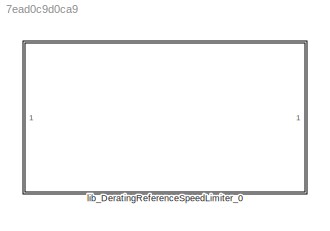
MODEL slx_7ead0c9d0ca9
KIND library
CONFIG AbsTol = auto
CONFIG EnableMultiTasking = off
CONFIG FixedStep = auto
CONFIG MaxStep = auto
CONFIG MinStep = auto
CONFIG RelTol = 1e-3
CONFIG SampleTimeConstraint = Unconstrained
CONFIG SolverName = VariableStepAuto
CONFIG StartTime = 0.0
CONFIG StopTime = 10.0
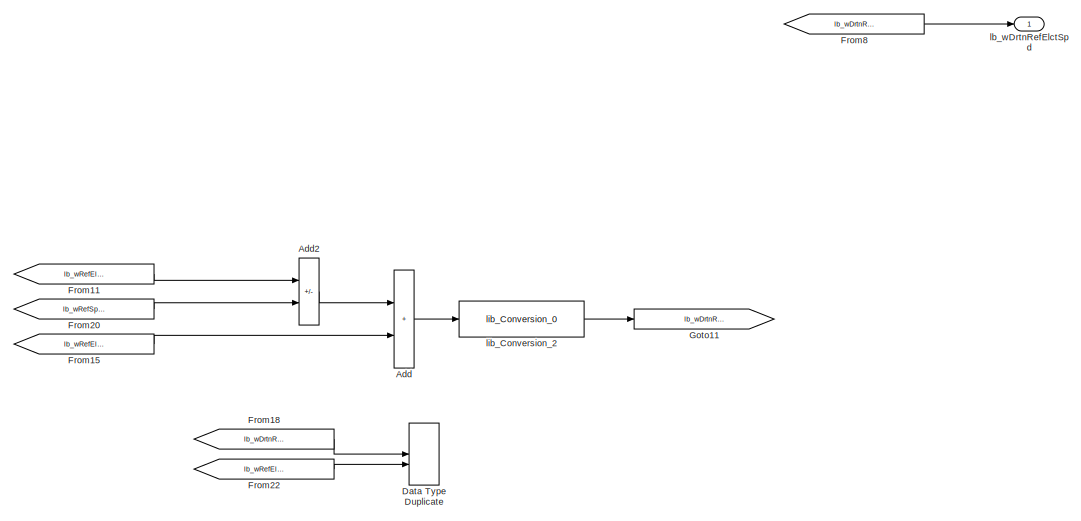
[diagram: lib_DeratingReferenceSpeedLimiter_0 - part 1/4, top right region]
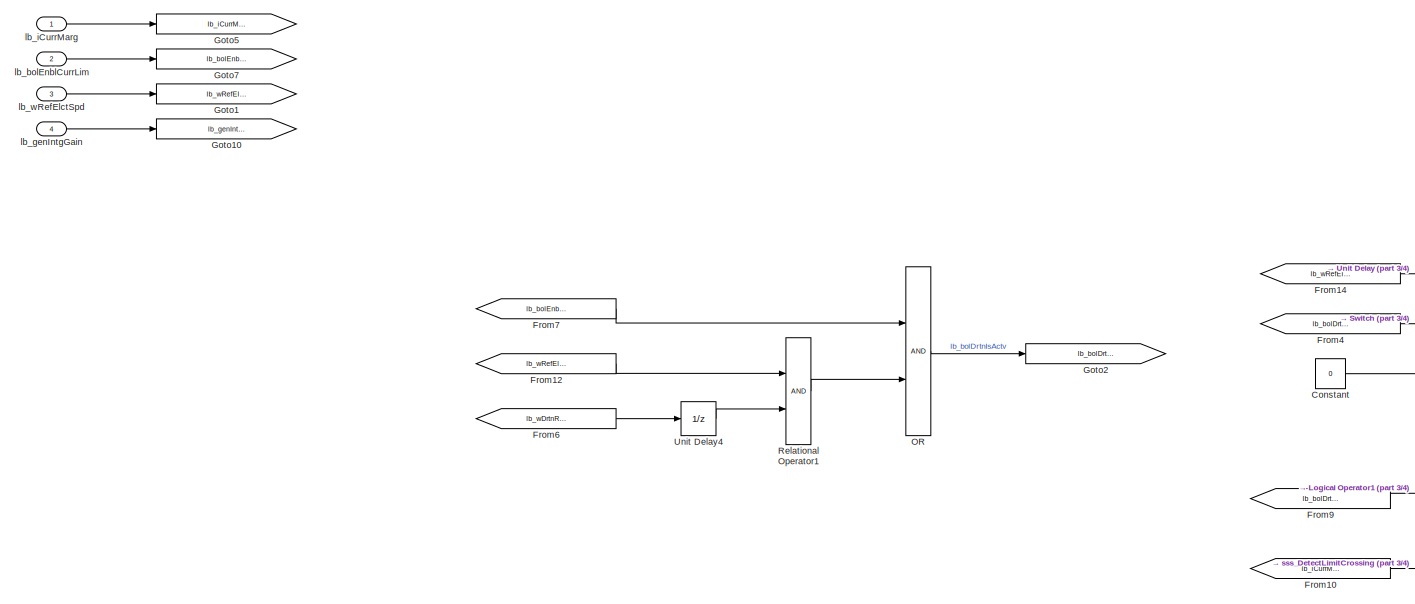
[diagram: lib_DeratingReferenceSpeedLimiter_0 - part 2/4, middle left region]
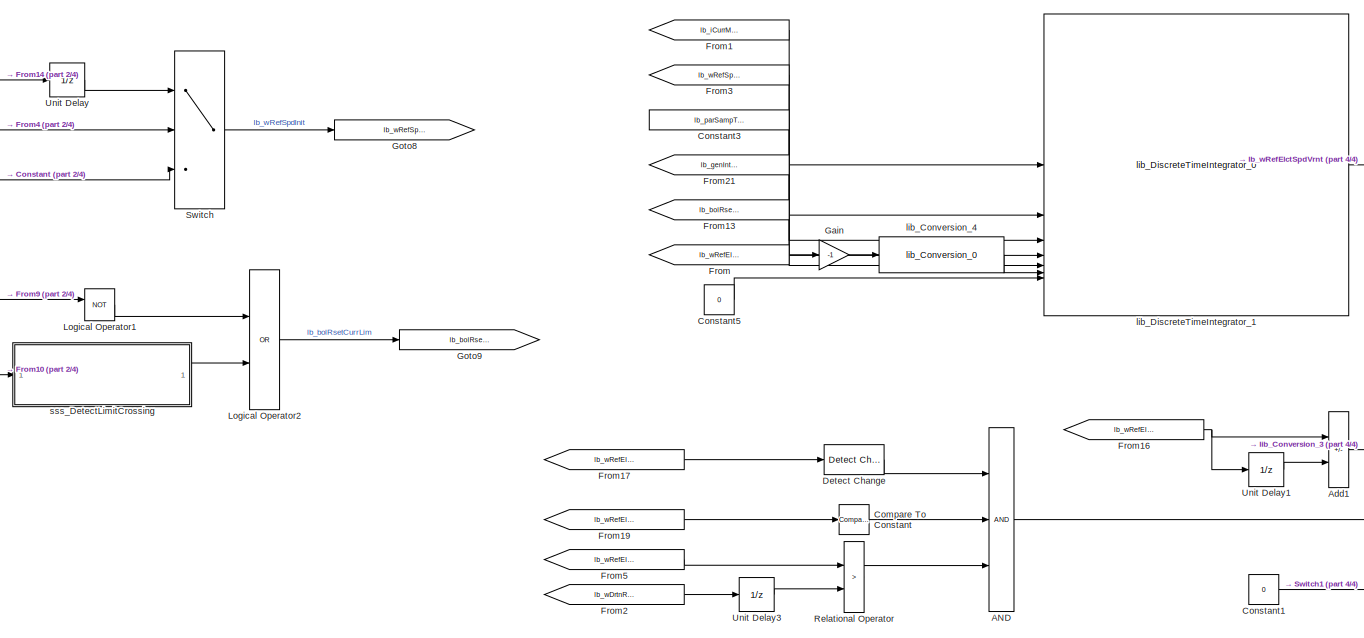
[diagram: lib_DeratingReferenceSpeedLimiter_0 - part 3/4, central region]
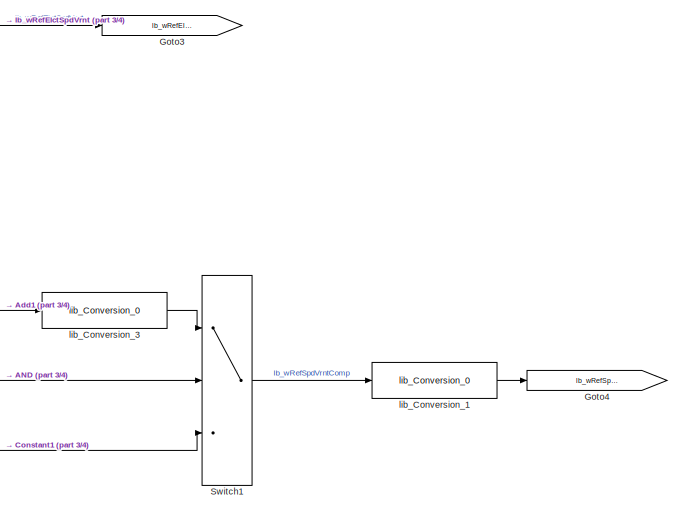
[diagram: lib_DeratingReferenceSpeedLimiter_0 - part 4/4, bottom right region]
BLOCK [SubSystem] lib_DeratingReferenceSpeedLimiter_0
BLOCK [Logic] lib_DeratingReferenceSpeedLimiter_0/AND
  AllPortsSameDT = off
  Inputs = 3
  OutDataTypeStr = boolean
BLOCK [Sum] lib_DeratingReferenceSpeedLimiter_0/Add
  IconShape = rectangular
  OutDataTypeStr = Inherit: Inherit via back propagation
BLOCK [Sum] lib_DeratingReferenceSpeedLimiter_0/Add1
  IconShape = rectangular
  Inputs = +-
  OutDataTypeStr = Inherit: Inherit via back propagation
BLOCK [Sum] lib_DeratingReferenceSpeedLimiter_0/Add2
  IconShape = rectangular
  Inputs = +-
  OutDataTypeStr = Inherit: Same as first input
BLOCK [Reference] lib_DeratingReferenceSpeedLimiter_0/Compare To Constant  REF=simulink/Logic and Bit
Operations/Compare
To Constant
  SourceBlock = simulink/Logic and Bit\nOperations/Compare\nTo Constant
  SourceType = Compare To Constant
BLOCK [Constant] lib_DeratingReferenceSpeedLimiter_0/Constant
  OutDataTypeStr = lb_parRefSpdDataType
  Value = 0
BLOCK [Constant] lib_DeratingReferenceSpeedLimiter_0/Constant1
  OutDataTypeStr = lb_parRefSpdDataType
  Value = 0
BLOCK [Constant] lib_DeratingReferenceSpeedLimiter_0/Constant3
  Value = lb_parSampTime
BLOCK [Constant] lib_DeratingReferenceSpeedLimiter_0/Constant5
  OutDataTypeStr = lb_parRefSpdDataType
  Value = 0
BLOCK [DataTypeDuplicate] lib_DeratingReferenceSpeedLimiter_0/Data Type Duplicate
BLOCK [Reference] lib_DeratingReferenceSpeedLimiter_0/Detect Change  REF=simulink/Logic and Bit
Operations/Detect
Change
  SourceBlock = simulink/Logic and Bit\nOperations/Detect\nChange
  SourceType = Detect Change
BLOCK [From] lib_DeratingReferenceSpeedLimiter_0/From
  GotoTag = lb_wRefElctSpd
BLOCK [From] lib_DeratingReferenceSpeedLimiter_0/From1
  GotoTag = lb_iCurrMarg
BLOCK [From] lib_DeratingReferenceSpeedLimiter_0/From10
  GotoTag = lb_iCurrMarg
BLOCK [From] lib_DeratingReferenceSpeedLimiter_0/From11
  GotoTag = lb_wRefElctSpdVrnt
BLOCK [From] lib_DeratingReferenceSpeedLimiter_0/From12
  GotoTag = lb_wRefElctSpd
BLOCK [From] lib_DeratingReferenceSpeedLimiter_0/From13
  GotoTag = lb_bolRsetCurrLim
BLOCK [From] lib_DeratingReferenceSpeedLimiter_0/From14
  GotoTag = lb_wRefElctSpdVrnt
BLOCK [From] lib_DeratingReferenceSpeedLimiter_0/From15
  GotoTag = lb_wRefElctSpd
BLOCK [From] lib_DeratingReferenceSpeedLimiter_0/From16
  GotoTag = lb_wRefElctSpd
BLOCK [From] lib_DeratingReferenceSpeedLimiter_0/From17
  GotoTag = lb_wRefElctSpd
BLOCK [From] lib_DeratingReferenceSpeedLimiter_0/From18
  GotoTag = lb_wDrtnRefElctSpd
BLOCK [From] lib_DeratingReferenceSpeedLimiter_0/From19
  GotoTag = lb_wRefElctSpdVrnt
BLOCK [From] lib_DeratingReferenceSpeedLimiter_0/From2
  GotoTag = lb_wDrtnRefElctSpd
BLOCK [From] lib_DeratingReferenceSpeedLimiter_0/From20
  GotoTag = lb_wRefSpdVrntComp
BLOCK [From] lib_DeratingReferenceSpeedLimiter_0/From21
  GotoTag = lb_genIntgGain
BLOCK [From] lib_DeratingReferenceSpeedLimiter_0/From22
  GotoTag = lb_wRefElctSpd
BLOCK [From] lib_DeratingReferenceSpeedLimiter_0/From3
  GotoTag = lb_wRefSpdInit
BLOCK [From] lib_DeratingReferenceSpeedLimiter_0/From4
  GotoTag = lb_bolDrtnIsActv
BLOCK [From] lib_DeratingReferenceSpeedLimiter_0/From5
  GotoTag = lb_wRefElctSpd
BLOCK [From] lib_DeratingReferenceSpeedLimiter_0/From6
  GotoTag = lb_wDrtnRefElctSpd
BLOCK [From] lib_DeratingReferenceSpeedLimiter_0/From7
  GotoTag = lb_bolEnblCurrLim
BLOCK [From] lib_DeratingReferenceSpeedLimiter_0/From8
  GotoTag = lb_wDrtnRefElctSpd
BLOCK [From] lib_DeratingReferenceSpeedLimiter_0/From9
  GotoTag = lb_bolDrtnIsActv
BLOCK [Gain] lib_DeratingReferenceSpeedLimiter_0/Gain
  Gain = -1
  OutDataTypeStr = Inherit: Inherit via back propagation
BLOCK [Goto] lib_DeratingReferenceSpeedLimiter_0/Goto1
  GotoTag = lb_wRefElctSpd
BLOCK [Goto] lib_DeratingReferenceSpeedLimiter_0/Goto10
  GotoTag = lb_genIntgGain
BLOCK [Goto] lib_DeratingReferenceSpeedLimiter_0/Goto11
  GotoTag = lb_wDrtnRefElctSpd
BLOCK [Goto] lib_DeratingReferenceSpeedLimiter_0/Goto2
  GotoTag = lb_bolDrtnIsActv
BLOCK [Goto] lib_DeratingReferenceSpeedLimiter_0/Goto3
  GotoTag = lb_wRefElctSpdVrnt
BLOCK [Goto] lib_DeratingReferenceSpeedLimiter_0/Goto4
  GotoTag = lb_wRefSpdVrntComp
BLOCK [Goto] lib_DeratingReferenceSpeedLimiter_0/Goto5
  GotoTag = lb_iCurrMarg
BLOCK [Goto] lib_DeratingReferenceSpeedLimiter_0/Goto7
  GotoTag = lb_bolEnblCurrLim
BLOCK [Goto] lib_DeratingReferenceSpeedLimiter_0/Goto8
  GotoTag = lb_wRefSpdInit
BLOCK [Goto] lib_DeratingReferenceSpeedLimiter_0/Goto9
  GotoTag = lb_bolRsetCurrLim
BLOCK [Logic] lib_DeratingReferenceSpeedLimiter_0/Logical Operator1
  AllPortsSameDT = off
  Operator = NOT
  OutDataTypeStr = boolean
BLOCK [Logic] lib_DeratingReferenceSpeedLimiter_0/Logical Operator2
  AllPortsSameDT = off
  Operator = OR
  OutDataTypeStr = boolean
BLOCK [Logic] lib_DeratingReferenceSpeedLimiter_0/OR
  AllPortsSameDT = off
  OutDataTypeStr = boolean
BLOCK [RelationalOperator] lib_DeratingReferenceSpeedLimiter_0/Relational Operator
  InputSameDT = off
  Operator = >
  OutDataTypeStr = boolean
  RndMeth = Simplest
BLOCK [RelationalOperator] lib_DeratingReferenceSpeedLimiter_0/Relational Operator1
  InputSameDT = off
  OutDataTypeStr = boolean
  RndMeth = Simplest
BLOCK [Switch] lib_DeratingReferenceSpeedLimiter_0/Switch
  Criteria = u2 ~= 0
  InputSameDT = off
  SaturateOnIntegerOverflow = off
BLOCK [Switch] lib_DeratingReferenceSpeedLimiter_0/Switch1
  Criteria = u2 ~= 0
  InputSameDT = off
  SaturateOnIntegerOverflow = off
BLOCK [UnitDelay] lib_DeratingReferenceSpeedLimiter_0/Unit Delay
  HasFrameUpgradeWarning = on
  SampleTime = -1
BLOCK [UnitDelay] lib_DeratingReferenceSpeedLimiter_0/Unit Delay1
  HasFrameUpgradeWarning = on
  SampleTime = -1
BLOCK [UnitDelay] lib_DeratingReferenceSpeedLimiter_0/Unit Delay3
  HasFrameUpgradeWarning = on
  SampleTime = -1
BLOCK [UnitDelay] lib_DeratingReferenceSpeedLimiter_0/Unit Delay4
  HasFrameUpgradeWarning = on
  SampleTime = -1
BLOCK [Inport] lib_DeratingReferenceSpeedLimiter_0/lb_bolEnblCurrLim
  OutDataTypeStr = boolean
  Port = 2
BLOCK [Inport] lib_DeratingReferenceSpeedLimiter_0/lb_genIntgGain
  OutMax = lb_parMaxIntgGain
  OutMin = 0
  Port = 4
BLOCK [Inport] lib_DeratingReferenceSpeedLimiter_0/lb_iCurrMarg
  OutMax = lb_parMaxCurrMarg
  OutMin = -lb_parMaxCurrMarg
BLOCK [Outport] lib_DeratingReferenceSpeedLimiter_0/lb_wDrtnRefElctSpd
BLOCK [Inport] lib_DeratingReferenceSpeedLimiter_0/lb_wRefElctSpd
  OutMax = lb_parMaxElctRefSpd
  OutMin = 0
  Port = 3
BLOCK [Reference] lib_DeratingReferenceSpeedLimiter_0/lib_Conversion_1  REF=lib_conversion/lib_Conversion_0  (lib defined in slx_7f5c0202220d)
  SourceBlock = lib_conversion/lib_Conversion_0
BLOCK [Reference] lib_DeratingReferenceSpeedLimiter_0/lib_Conversion_2  REF=lib_conversion/lib_Conversion_0  (lib defined in slx_7f5c0202220d)
  SourceBlock = lib_conversion/lib_Conversion_0
BLOCK [Reference] lib_DeratingReferenceSpeedLimiter_0/lib_Conversion_3  REF=lib_conversion/lib_Conversion_0  (lib defined in slx_7f5c0202220d)
  SourceBlock = lib_conversion/lib_Conversion_0
BLOCK [Reference] lib_DeratingReferenceSpeedLimiter_0/lib_Conversion_4  REF=lib_conversion/lib_Conversion_0  (lib defined in slx_7f5c0202220d)
  SourceBlock = lib_conversion/lib_Conversion_0
BLOCK [Reference] lib_DeratingReferenceSpeedLimiter_0/lib_DiscreteTimeIntegrator_1  REF=lib_discrete_time_integrator/lib_DiscreteTimeIntegrator_0
  LibrarySourceBlock = vhit_control_library/lib_DiscreteTimeIntegrator_0
  SourceBlock = lib_discrete_time_integrator/lib_DiscreteTimeIntegrator_0
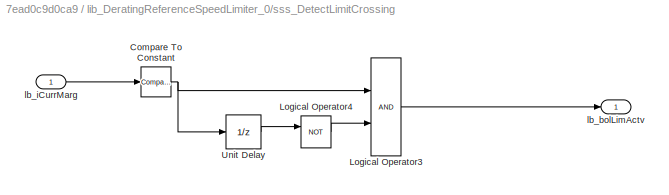
BLOCK [SubSystem] lib_DeratingReferenceSpeedLimiter_0/sss_DetectLimitCrossing
BLOCK [Reference] lib_DeratingReferenceSpeedLimiter_0/sss_DetectLimitCrossing/Compare To Constant  REF=simulink/Logic and Bit
Operations/Compare
To Constant
  SourceBlock = simulink/Logic and Bit\nOperations/Compare\nTo Constant
  SourceType = Compare To Constant
BLOCK [Logic] lib_DeratingReferenceSpeedLimiter_0/sss_DetectLimitCrossing/Logical Operator3
  AllPortsSameDT = off
  OutDataTypeStr = boolean
BLOCK [Logic] lib_DeratingReferenceSpeedLimiter_0/sss_DetectLimitCrossing/Logical Operator4
  AllPortsSameDT = off
  Operator = NOT
  OutDataTypeStr = boolean
BLOCK [UnitDelay] lib_DeratingReferenceSpeedLimiter_0/sss_DetectLimitCrossing/Unit Delay
  HasFrameUpgradeWarning = on
  SampleTime = -1
BLOCK [Outport] lib_DeratingReferenceSpeedLimiter_0/sss_DetectLimitCrossing/lb_bolLimActv
BLOCK [Inport] lib_DeratingReferenceSpeedLimiter_0/sss_DetectLimitCrossing/lb_iCurrMarg
LINE lib_DeratingReferenceSpeedLimiter_0/AND:1 -> lib_DeratingReferenceSpeedLimiter_0/Switch1:2
LINE lib_DeratingReferenceSpeedLimiter_0/Add1:1 -> lib_DeratingReferenceSpeedLimiter_0/lib_Conversion_3:1
LINE lib_DeratingReferenceSpeedLimiter_0/Add2:1 -> lib_DeratingReferenceSpeedLimiter_0/Add:1
LINE lib_DeratingReferenceSpeedLimiter_0/Add:1 -> lib_DeratingReferenceSpeedLimiter_0/lib_Conversion_2:1
LINE lib_DeratingReferenceSpeedLimiter_0/Compare To Constant:1 -> lib_DeratingReferenceSpeedLimiter_0/AND:2
LINE lib_DeratingReferenceSpeedLimiter_0/Constant1:1 -> lib_DeratingReferenceSpeedLimiter_0/Switch1:3
LINE lib_DeratingReferenceSpeedLimiter_0/Constant3:1 -> lib_DeratingReferenceSpeedLimiter_0/lib_DiscreteTimeIntegrator_1:3
LINE lib_DeratingReferenceSpeedLimiter_0/Constant5:1 -> lib_DeratingReferenceSpeedLimiter_0/lib_DiscreteTimeIntegrator_1:7
LINE lib_DeratingReferenceSpeedLimiter_0/Constant:1 -> lib_DeratingReferenceSpeedLimiter_0/Switch:3
LINE lib_DeratingReferenceSpeedLimiter_0/Detect Change:1 -> lib_DeratingReferenceSpeedLimiter_0/AND:1
LINE lib_DeratingReferenceSpeedLimiter_0/From10:1 -> lib_DeratingReferenceSpeedLimiter_0/sss_DetectLimitCrossing:1
LINE lib_DeratingReferenceSpeedLimiter_0/From11:1 -> lib_DeratingReferenceSpeedLimiter_0/Add2:1
LINE lib_DeratingReferenceSpeedLimiter_0/From12:1 -> lib_DeratingReferenceSpeedLimiter_0/Relational Operator1:1
LINE lib_DeratingReferenceSpeedLimiter_0/From13:1 -> lib_DeratingReferenceSpeedLimiter_0/lib_DiscreteTimeIntegrator_1:5
LINE lib_DeratingReferenceSpeedLimiter_0/From14:1 -> lib_DeratingReferenceSpeedLimiter_0/Unit Delay:1
LINE lib_DeratingReferenceSpeedLimiter_0/From15:1 -> lib_DeratingReferenceSpeedLimiter_0/Add:2
NET lib_DeratingReferenceSpeedLimiter_0/From16:1 -> lib_DeratingReferenceSpeedLimiter_0/Add1:1, lib_DeratingReferenceSpeedLimiter_0/Unit Delay1:1
LINE lib_DeratingReferenceSpeedLimiter_0/From17:1 -> lib_DeratingReferenceSpeedLimiter_0/Detect Change:1
LINE lib_DeratingReferenceSpeedLimiter_0/From18:1 -> lib_DeratingReferenceSpeedLimiter_0/Data Type Duplicate:1
LINE lib_DeratingReferenceSpeedLimiter_0/From19:1 -> lib_DeratingReferenceSpeedLimiter_0/Compare To Constant:1
LINE lib_DeratingReferenceSpeedLimiter_0/From1:1 -> lib_DeratingReferenceSpeedLimiter_0/lib_DiscreteTimeIntegrator_1:1
LINE lib_DeratingReferenceSpeedLimiter_0/From20:1 -> lib_DeratingReferenceSpeedLimiter_0/Add2:2
LINE lib_DeratingReferenceSpeedLimiter_0/From21:1 -> lib_DeratingReferenceSpeedLimiter_0/lib_DiscreteTimeIntegrator_1:4
LINE lib_DeratingReferenceSpeedLimiter_0/From22:1 -> lib_DeratingReferenceSpeedLimiter_0/Data Type Duplicate:2
LINE lib_DeratingReferenceSpeedLimiter_0/From2:1 -> lib_DeratingReferenceSpeedLimiter_0/Unit Delay3:1
LINE lib_DeratingReferenceSpeedLimiter_0/From3:1 -> lib_DeratingReferenceSpeedLimiter_0/lib_DiscreteTimeIntegrator_1:2
LINE lib_DeratingReferenceSpeedLimiter_0/From4:1 -> lib_DeratingReferenceSpeedLimiter_0/Switch:2
LINE lib_DeratingReferenceSpeedLimiter_0/From5:1 -> lib_DeratingReferenceSpeedLimiter_0/Relational Operator:1
LINE lib_DeratingReferenceSpeedLimiter_0/From6:1 -> lib_DeratingReferenceSpeedLimiter_0/Unit Delay4:1
LINE lib_DeratingReferenceSpeedLimiter_0/From7:1 -> lib_DeratingReferenceSpeedLimiter_0/OR:1
LINE lib_DeratingReferenceSpeedLimiter_0/From8:1 -> lib_DeratingReferenceSpeedLimiter_0/lb_wDrtnRefElctSpd:1
LINE lib_DeratingReferenceSpeedLimiter_0/From9:1 -> lib_DeratingReferenceSpeedLimiter_0/Logical Operator1:1
LINE lib_DeratingReferenceSpeedLimiter_0/From:1 -> lib_DeratingReferenceSpeedLimiter_0/Gain:1
LINE lib_DeratingReferenceSpeedLimiter_0/Gain:1 -> lib_DeratingReferenceSpeedLimiter_0/lib_Conversion_4:1
LINE lib_DeratingReferenceSpeedLimiter_0/Logical Operator1:1 -> lib_DeratingReferenceSpeedLimiter_0/Logical Operator2:1
LINE lib_DeratingReferenceSpeedLimiter_0/Logical Operator2:1 -> lib_DeratingReferenceSpeedLimiter_0/Goto9:1
LINE lib_DeratingReferenceSpeedLimiter_0/OR:1 -> lib_DeratingReferenceSpeedLimiter_0/Goto2:1
LINE lib_DeratingReferenceSpeedLimiter_0/Relational Operator1:1 -> lib_DeratingReferenceSpeedLimiter_0/OR:2
LINE lib_DeratingReferenceSpeedLimiter_0/Relational Operator:1 -> lib_DeratingReferenceSpeedLimiter_0/AND:3
LINE lib_DeratingReferenceSpeedLimiter_0/Switch1:1 -> lib_DeratingReferenceSpeedLimiter_0/lib_Conversion_1:1
LINE lib_DeratingReferenceSpeedLimiter_0/Switch:1 -> lib_DeratingReferenceSpeedLimiter_0/Goto8:1
LINE lib_DeratingReferenceSpeedLimiter_0/Unit Delay1:1 -> lib_DeratingReferenceSpeedLimiter_0/Add1:2
LINE lib_DeratingReferenceSpeedLimiter_0/Unit Delay3:1 -> lib_DeratingReferenceSpeedLimiter_0/Relational Operator:2
LINE lib_DeratingReferenceSpeedLimiter_0/Unit Delay4:1 -> lib_DeratingReferenceSpeedLimiter_0/Relational Operator1:2
LINE lib_DeratingReferenceSpeedLimiter_0/Unit Delay:1 -> lib_DeratingReferenceSpeedLimiter_0/Switch:1
LINE lib_DeratingReferenceSpeedLimiter_0/lb_bolEnblCurrLim:1 -> lib_DeratingReferenceSpeedLimiter_0/Goto7:1
LINE lib_DeratingReferenceSpeedLimiter_0/lb_genIntgGain:1 -> lib_DeratingReferenceSpeedLimiter_0/Goto10:1
LINE lib_DeratingReferenceSpeedLimiter_0/lb_iCurrMarg:1 -> lib_DeratingReferenceSpeedLimiter_0/Goto5:1
LINE lib_DeratingReferenceSpeedLimiter_0/lb_wRefElctSpd:1 -> lib_DeratingReferenceSpeedLimiter_0/Goto1:1
LINE lib_DeratingReferenceSpeedLimiter_0/lib_Conversion_1:1 -> lib_DeratingReferenceSpeedLimiter_0/Goto4:1
LINE lib_DeratingReferenceSpeedLimiter_0/lib_Conversion_2:1 -> lib_DeratingReferenceSpeedLimiter_0/Goto11:1
LINE lib_DeratingReferenceSpeedLimiter_0/lib_Conversion_3:1 -> lib_DeratingReferenceSpeedLimiter_0/Switch1:1
LINE lib_DeratingReferenceSpeedLimiter_0/lib_Conversion_4:1 -> lib_DeratingReferenceSpeedLimiter_0/lib_DiscreteTimeIntegrator_1:6
LINE lib_DeratingReferenceSpeedLimiter_0/lib_DiscreteTimeIntegrator_1:1 -> lib_DeratingReferenceSpeedLimiter_0/Goto3:1
NET lib_DeratingReferenceSpeedLimiter_0/sss_DetectLimitCrossing/Compare To Constant:1 -> lib_DeratingReferenceSpeedLimiter_0/sss_DetectLimitCrossing/Logical Operator3:1, lib_DeratingReferenceSpeedLimiter_0/sss_DetectLimitCrossing/Unit Delay:1
LINE lib_DeratingReferenceSpeedLimiter_0/sss_DetectLimitCrossing/Logical Operator3:1 -> lib_DeratingReferenceSpeedLimiter_0/sss_DetectLimitCrossing/lb_bolLimActv:1
LINE lib_DeratingReferenceSpeedLimiter_0/sss_DetectLimitCrossing/Logical Operator4:1 -> lib_DeratingReferenceSpeedLimiter_0/sss_DetectLimitCrossing/Logical Operator3:2
LINE lib_DeratingReferenceSpeedLimiter_0/sss_DetectLimitCrossing/Unit Delay:1 -> lib_DeratingReferenceSpeedLimiter_0/sss_DetectLimitCrossing/Logical Operator4:1
LINE lib_DeratingReferenceSpeedLimiter_0/sss_DetectLimitCrossing/lb_iCurrMarg:1 -> lib_DeratingReferenceSpeedLimiter_0/sss_DetectLimitCrossing/Compare To Constant:1
LINE lib_DeratingReferenceSpeedLimiter_0/sss_DetectLimitCrossing:1 -> lib_DeratingReferenceSpeedLimiter_0/Logical Operator2:2
note: NET lines group one-source signal fan-out (src -> all destinations, sorted); 1:1 wires keep LINE
